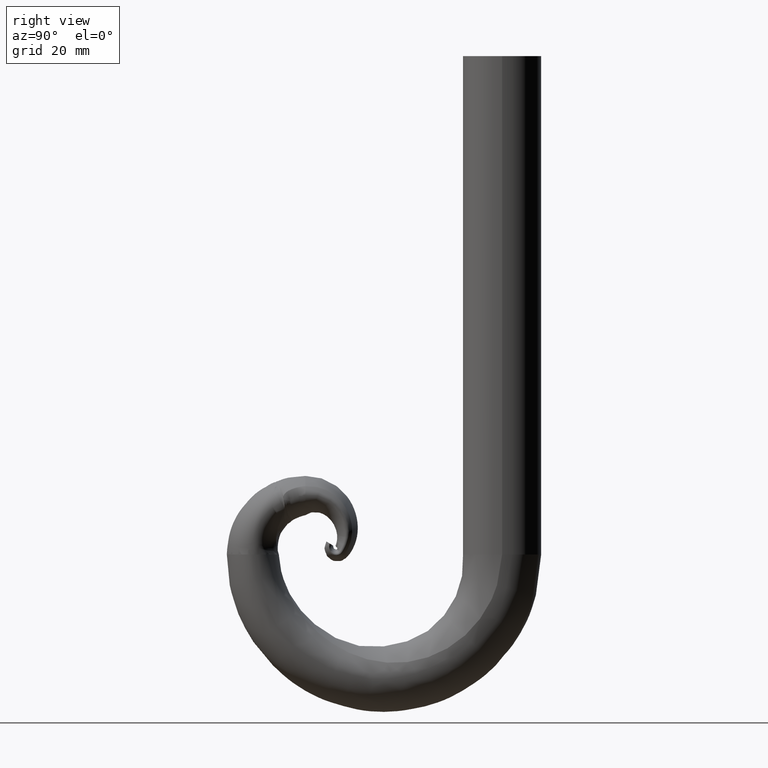
[diagram: clean part render]
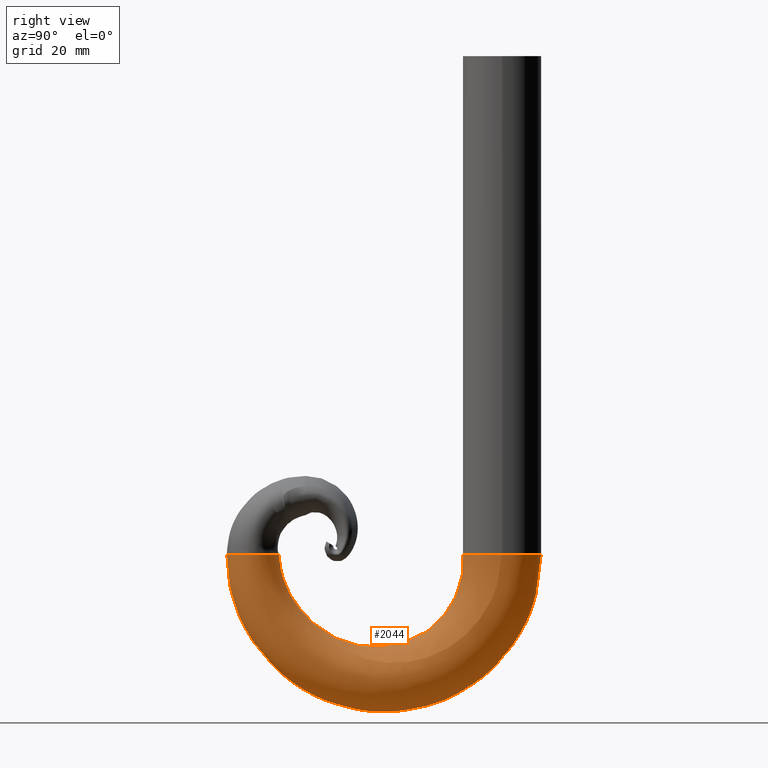
[diagram: same view with one face highlighted and labeled with its STEP entity id]
A machine part, right view. The second image highlights one B-rep face of the part: STEP entity #2044.
In plain terms, the highlighted face is a freeform B-spline surface patch.
Its self-contained STEP definition (entity closure, byte-faithful):
#25 = CARTESIAN_POINT ( 'NONE',  ( 13.65886937784926000, 22.75123339243464600, -24.79254982472513500 ) ) ;
#37 = CARTESIAN_POINT ( 'NONE',  ( 13.36867579086062300, 111.5294611910136500, -4.540036790082970300 ) ) ;
#73 = CARTESIAN_POINT ( 'NONE',  ( 10.96600749127136800, 17.86125531808370700, -8.337120620649692200 ) ) ;
#84 = CARTESIAN_POINT ( 'NONE',  ( 10.58119358983072400, 21.11521625171146300, -16.06602046360620100 ) ) ;
#114 = CARTESIAN_POINT ( 'NONE',  ( 14.31059420103306600, 37.29110021392713700, -38.92888312101727900 ) ) ;
#156 = CARTESIAN_POINT ( 'NONE',  ( 10.53618836772860900, 17.46906908887476500, -2.784063157197942800 ) ) ;
#167 = CARTESIAN_POINT ( 'NONE',  ( 15.03172340500698900, 59.73443276240129800, -47.13876090660996700 ) ) ;
#198 = CARTESIAN_POINT ( 'NONE',  ( 11.75979875955969000, 17.23765410008450200, -8.456311724701480500 ) ) ;
#209 = CARTESIAN_POINT ( 'NONE',  ( 13.44180638684116300, 111.6700213106032600, 0.0000000000000000000 ) ) ;
#242 = CARTESIAN_POINT ( 'NONE',  ( 14.35263051915613500, 95.84617851167539000, -36.10685157905737000 ) ) ;
#251 = CARTESIAN_POINT ( 'NONE',  ( 16.02063080316139200, 101.6991707927695500, 0.0000000000000000000 ) ) ;
#289 = CARTESIAN_POINT ( 'NONE',  ( 3.329724182468171400, 28.71957191434831800, -20.86998937878071600 ) ) ;
#334 = CARTESIAN_POINT ( 'NONE',  ( 14.56811554756758800, 108.6508297933929700, 0.0000000000000000000 ) ) ;
#384 = CARTESIAN_POINT ( 'NONE',  ( 15.02507487691591200, 71.87172978469335800, -45.22949707420258400 ) ) ;
#426 = CARTESIAN_POINT ( 'NONE',  ( 13.53233805482979700, 48.64033355194603600, -41.43941324657655700 ) ) ;
#465 = CARTESIAN_POINT ( 'NONE',  ( -15.02317522259562000, 30.43393890101662100, -31.00682966068207900 ) ) ;
#514 = CARTESIAN_POINT ( 'NONE',  ( -13.17319415493920300, 109.1773751614643300, -28.44987507943329800 ) ) ;
#555 = CARTESIAN_POINT ( 'NONE',  ( -8.948307317937388200, 60.02413107051511100, -35.67924677939678400 ) ) ;
#760 = CARTESIAN_POINT ( 'NONE',  ( -16.69173651622178800, 13.54120400265043900, -9.283998937244472700 ) ) ;
#804 = CARTESIAN_POINT ( 'NONE',  ( -16.53243676433012900, 48.62639190731268700, -43.04940839834025500 ) ) ;
#846 = CARTESIAN_POINT ( 'NONE',  ( 13.08895571177299500, 59.74971604120482000, -56.39657832214689400 ) ) ;
#894 = CARTESIAN_POINT ( 'NONE',  ( 16.07953326275658400, 12.29554982053414700, -3.130234800610209000 ) ) ;
#943 = CARTESIAN_POINT ( 'NONE',  ( 7.955483097077817000, 111.8607789429253900, -30.13103080806279300 ) ) ;
#975 = CARTESIAN_POINT ( 'NONE',  ( 15.00000000000000000, 105.0000000000000000, 0.0000000000000000000 ) ) ;
#992 = CARTESIAN_POINT ( 'NONE',  ( 12.46800299422817400, 16.58128002790937200, -8.582232053386869500 ) ) ;
#1036 = CARTESIAN_POINT ( 'NONE',  ( 12.41848821633131900, 112.5561707187451400, -14.14670106275117300 ) ) ;
#1043 = CARTESIAN_POINT ( 'NONE',  ( 13.61077113254024200, 110.5169689503188600, -13.62203090800151800 ) ) ;
#1073 = CARTESIAN_POINT ( 'NONE',  ( 14.40606876968519900, 85.35749614917175200, -44.33923479618634600 ) ) ;
#1114 = CARTESIAN_POINT ( 'NONE',  ( 14.96567091041886300, 72.42269961061721500, -47.29046816931322900 ) ) ;
#1139 = CARTESIAN_POINT ( 'NONE',  ( 15.00000000000000000, 10.00000000000000000, 0.0000000000000000000 ) ) ;
#1159 = CARTESIAN_POINT ( 'NONE',  ( 13.37459531095454500, 29.56336317270020300, -31.60556189032403300 ) ) ;
#1188 = VERTEX_POINT ( 'NONE', #7863 ) ;
#1197 = CARTESIAN_POINT ( 'NONE',  ( 13.85027397396524800, 37.75113446477081400, -38.14808545784130400 ) ) ;
#1208 = CARTESIAN_POINT ( 'NONE',  ( 13.89813281261430500, 110.4314292880276300, -4.446882771636524000 ) ) ;
#1247 = CARTESIAN_POINT ( 'NONE',  ( 10.06471797262829800, 25.73709163599889700, -22.82153711524168900 ) ) ;
#1295 = CARTESIAN_POINT ( 'NONE',  ( 12.70252136942210600, 94.62559131663455500, -3.114756689252203600 ) ) ;
#1339 = CARTESIAN_POINT ( 'NONE',  ( 14.89661200973689000, 94.27755446427259800, -34.54805513892981100 ) ) ;
#1379 = CARTESIAN_POINT ( 'NONE',  ( 14.47464938853325800, 108.3326327246659000, -13.05743736335147700 ) ) ;
#1429 = CARTESIAN_POINT ( 'NONE',  ( 8.068984424234843200, 22.45054665072792200, -15.52470636384562900 ) ) ;
#1479 = CARTESIAN_POINT ( 'NONE',  ( -16.99548070941379800, 101.9848532676185300, -24.28023947040913900 ) ) ;
#1525 = CARTESIAN_POINT ( 'NONE',  ( 3.240904874062261200, 50.76436130148197600, -34.04934551584024400 ) ) ;
#1543 = AXIS2_PLACEMENT_3D ( 'NONE', #11543, #6706, #7706 ) ;
#1563 = CARTESIAN_POINT ( 'NONE',  ( -17.10338262123924100, 105.6608731966419400, -12.16300325651428300 ) ) ;
#1774 = CARTESIAN_POINT ( 'NONE',  ( -17.12160022678280000, 105.4042587609114000, -4.053762807867186300 ) ) ;
#1819 = CARTESIAN_POINT ( 'NONE',  ( -16.58602445892478300, 11.24285004736606700, -20.24769498451306800 ) ) ;
#1859 = CARTESIAN_POINT ( 'NONE',  ( 7.033811235658875600, 118.5928542289492800, -15.68830275120423500 ) ) ;
#1908 = CARTESIAN_POINT ( 'NONE',  ( 11.18286558935782400, 115.0250718699649600, 0.0000000000000000000 ) ) ;
#1956 = CARTESIAN_POINT ( 'NONE',  ( 15.57987839622963500, 7.364760634913289500, -10.37531967528425800 ) ) ;
#1977 = CARTESIAN_POINT ( 'NONE',  ( -15.00000000000000000, 10.00000000000000200, 0.0000000000000000000 ) ) ;
#2000 = CARTESIAN_POINT ( 'NONE',  ( 11.93150763086006600, 16.08085061455985400, 0.0000000000000000000 ) ) ;
#2041 = CARTESIAN_POINT ( 'NONE',  ( 13.46234456845709100, 97.34661674375537600, -37.59449597473508900 ) ) ;
#2044 = ADVANCED_FACE ( 'NONE', ( #3870, #10672 ), #7093, .T. ) ;
#2088 = CARTESIAN_POINT ( 'NONE',  ( 14.81063291613967800, 72.70011961184782500, -48.32355822531205500 ) ) ;
#2128 = CARTESIAN_POINT ( 'NONE',  ( 14.65348935523129500, 36.82569988167249200, -39.72185921537911200 ) ) ;
#2137 = CARTESIAN_POINT ( 'NONE',  ( 13.85027397396524800, 37.75113446477081400, -38.14808545784130400 ) ) ;
#2168 = CARTESIAN_POINT ( 'NONE',  ( 14.60976029479772500, 84.99685382574684000, -43.72035949060668300 ) ) ;
#2177 = CARTESIAN_POINT ( 'NONE',  ( 9.765521296487374800, 18.63065612542083500, -8.190870352970122800 ) ) ;
#2206 = CARTESIAN_POINT ( 'NONE',  ( 13.05350104826152900, 112.4011792039012600, 0.0000000000000000000 ) ) ;
#2219 = CARTESIAN_POINT ( 'NONE',  ( 14.40237196033587400, 103.5547420688383900, -25.38507203133297500 ) ) ;
#2251 = CARTESIAN_POINT ( 'NONE',  ( 14.23081762309030100, 96.10683517424077100, -36.36558699354291900 ) ) ;
#2264 = CARTESIAN_POINT ( 'NONE',  ( -0.2609481619960991600, 20.90337339936101200, 0.0000000000000000000 ) ) ;
#2309 = CARTESIAN_POINT ( 'NONE',  ( 11.62949255988013600, 90.43743188686781300, -17.80747700441826700 ) ) ;
#2349 = CARTESIAN_POINT ( 'NONE',  ( 12.19578283859876700, 59.77433762001421500, -38.76076157967479900 ) ) ;
#2400 = CARTESIAN_POINT ( 'NONE',  ( 10.46601283454992900, 31.63068636409766700, -29.48440301943750800 ) ) ;
#2444 = CARTESIAN_POINT ( 'NONE',  ( 14.90437009447098800, 101.6048980144619200, -24.26451279984258100 ) ) ;
#2482 = CARTESIAN_POINT ( 'NONE',  ( -14.17819593577642000, 114.3032900651337400, -4.801513492115090800 ) ) ;
#2526 = CARTESIAN_POINT ( 'NONE',  ( -0.2759786757278812600, 87.86929289665229700, 0.0000000000000000000 ) ) ;
#2572 = CARTESIAN_POINT ( 'NONE',  ( 0.1427846896098936600, 42.04199549219753600, -31.10079997570176500 ) ) ;
#2787 = CARTESIAN_POINT ( 'NONE',  ( -5.148251374936091200, 3.329947838935730000, -23.46895972212463400 ) ) ;
#2831 = CARTESIAN_POINT ( 'NONE',  ( -16.41983305409973300, 85.87791324307794100, -44.75669429804985800 ) ) ;
#2879 = CARTESIAN_POINT ( 'NONE',  ( 15.75808213511765200, 7.250639095366931700, -3.464690816702954200 ) ) ;
#2921 = CARTESIAN_POINT ( 'NONE',  ( 10.17367349406500100, 89.22860608617391200, -50.95032962567322000 ) ) ;
#2963 = CARTESIAN_POINT ( 'NONE',  ( 11.54504288688203900, 74.74061122662377000, -55.84348118184490800 ) ) ;
#2988 = CARTESIAN_POINT ( 'NONE',  ( -15.00000000000000700, -9.999999999999994700, 0.0000000000000000000 ) ) ;
#3012 = CARTESIAN_POINT ( 'NONE',  ( 12.10268816681459600, 113.5874286893559500, -4.714902184333601200 ) ) ;
#3037 = CARTESIAN_POINT ( 'NONE',  ( 15.00000000000000200, 30.00000000000000400, 0.0000000000000000000 ) ) ;
#3056 = CARTESIAN_POINT ( 'NONE',  ( 14.54517086623603300, 72.96909245953818900, -49.32092751419465800 ) ) ;
#3065 = CARTESIAN_POINT ( 'NONE',  ( 14.78214817663601200, 84.62984046003330700, -43.09000757821136300 ) ) ;
#3092 = CARTESIAN_POINT ( 'NONE',  ( 13.83443137359996400, 104.8377868492025900, -26.12091325796933800 ) ) ;
#3129 = CARTESIAN_POINT ( 'NONE',  ( 15.04944791063838800, 59.73394416122971500, -47.48873361912127700 ) ) ;
#3171 = CARTESIAN_POINT ( 'NONE',  ( 12.96640201886075200, 29.94086409269774400, -31.21689805252959400 ) ) ;
#3182 = CARTESIAN_POINT ( 'NONE',  ( 9.292662419570200800, 18.19517560161083500, -2.735224955077113900 ) ) ;
#3213 = CARTESIAN_POINT ( 'NONE',  ( 13.95732746680796400, 96.61691347587752400, -36.87158351457969700 ) ) ;
#3251 = CARTESIAN_POINT ( 'NONE',  ( 15.06857082344280100, 59.73288091765882500, -48.53332761438430500 ) ) ;
#3261 = CARTESIAN_POINT ( 'NONE',  ( 7.111514465200612800, 19.87666397507723600, -7.956619278688311400 ) ) ;
#3304 = CARTESIAN_POINT ( 'NONE',  ( 10.75133614133581800, 84.82242876168685100, -25.08406731732537400 ) ) ;
#3351 = CARTESIAN_POINT ( 'NONE',  ( 7.482266405268371800, 41.24183890570883900, -32.29535317257052200 ) ) ;
#3393 = CARTESIAN_POINT ( 'NONE',  ( 10.10603245325745200, 50.00580344026105500, -36.52327863975961000 ) ) ;
#3432 = CARTESIAN_POINT ( 'NONE',  ( 0.06703834509963253800, 21.26715558571983100, -2.526449376463740600 ) ) ;
#3478 = CARTESIAN_POINT ( 'NONE',  ( -5.563707877214132400, 24.27974417582924000, -14.82321233561509300 ) ) ;
#3504 = VERTEX_POINT ( 'NONE', #975 ) ;
#3519 = CARTESIAN_POINT ( 'NONE',  ( -9.736760735355039400, 75.50562300308774900, -57.92001344963555500 ) ) ;
#3554 = CARTESIAN_POINT ( 'NONE',  ( -4.987467944102919000, 76.14172072940385800, -28.14145828932868600 ) ) ;
#3762 = CARTESIAN_POINT ( 'NONE',  ( -2.360745645402453800, 34.54867377425345200, -26.58495410301150800 ) ) ;
#3807 = CARTESIAN_POINT ( 'NONE',  ( -0.5785497277666746800, 87.97398017270086300, -2.566904941571138500 ) ) ;
#3849 = CARTESIAN_POINT ( 'NONE',  ( 15.84742579258535000, 7.193423484726333900, 0.0000000000000000000 ) ) ;
#3870 = FACE_OUTER_BOUND ( 'NONE', #12253, .T. ) ;
#3896 = CARTESIAN_POINT ( 'NONE',  ( 16.33364729884444300, 14.84295658622133400, -18.63240973849189100 ) ) ;
#3941 = CARTESIAN_POINT ( 'NONE',  ( 12.88745943470347700, 98.03919671296061700, -38.27966671589382500 ) ) ;
#3982 = CARTESIAN_POINT ( 'NONE',  ( 6.210637816380871500, -0.4250689724260337500, -3.968638147301916300 ) ) ;
#4018 = CARTESIAN_POINT ( 'NONE',  ( 6.530244006936962700, -0.5597391234612864000, 0.0000000000000000000 ) ) ;
#4027 = CARTESIAN_POINT ( 'NONE',  ( 14.96567091041886300, 72.42269961061721500, -47.29046816931322900 ) ) ;
#4062 = CARTESIAN_POINT ( 'NONE',  ( 10.37993769632153600, 18.25265887406525400, -8.262631311037619500 ) ) ;
#4074 = CARTESIAN_POINT ( 'NONE',  ( 14.35263051915613500, 95.84617851167539000, -36.10685157905737000 ) ) ;
#4103 = CARTESIAN_POINT ( 'NONE',  ( 11.69524451139238500, 20.31237799346770200, -16.39303032349296500 ) ) ;
#4149 = CARTESIAN_POINT ( 'NONE',  ( 11.16733696925948900, 16.69437642397010200, 0.0000000000000000000 ) ) ;
#4185 = CARTESIAN_POINT ( 'NONE',  ( 14.69595423571686900, 84.81334714289006600, -43.40518353440901900 ) ) ;
#4195 = CARTESIAN_POINT ( 'NONE',  ( 14.91998933666971900, 84.26336055804391400, -42.46003766954674300 ) ) ;
#4227 = CARTESIAN_POINT ( 'NONE',  ( 11.98975252373214000, 24.44108627308053600, -23.67505062830418800 ) ) ;
#4239 = CARTESIAN_POINT ( 'NONE',  ( 6.298828313048340500, 19.08926865827918800, 0.0000000000000000000 ) ) ;
#4282 = CARTESIAN_POINT ( 'NONE',  ( 13.59894102852481600, 70.04410711660622700, -38.33293492603125700 ) ) ;
#4322 = CARTESIAN_POINT ( 'NONE',  ( 6.570213324435616000, 19.35220815398685800, -2.657000132009697000 ) ) ;
#4365 = CARTESIAN_POINT ( 'NONE',  ( 15.01139161047345600, 93.49438175221737900, -33.76835067641597700 ) ) ;
#4413 = CARTESIAN_POINT ( 'NONE',  ( 9.990337308611769300, 21.49187017878975000, -15.91287064442876300 ) ) ;
#4456 = CARTESIAN_POINT ( 'NONE',  ( -3.928565498062867300, -0.4799744632086270800, -11.98249798818637600 ) ) ;
#4495 = CARTESIAN_POINT ( 'NONE',  ( -7.663725067936952400, 59.98871973632049800, -61.04349353616174800 ) ) ;
#4536 = CARTESIAN_POINT ( 'NONE',  ( -16.91002006429105700, 17.18767714890725500, -28.66937132136452200 ) ) ;
#4643 =( BOUNDED_CURVE ( )  B_SPLINE_CURVE ( 3, ( #1139, #3037, #10007, #1977, #2988, #8066, #10960 ),
 .UNSPECIFIED., .T., .F. ) 
 B_SPLINE_CURVE_WITH_KNOTS ( ( 4, 3, 4 ),
 ( 0.0000000000000000000, 3.141592653589793100, 6.283185307179586200 ),
 .UNSPECIFIED. ) 
 CURVE ( )  GEOMETRIC_REPRESENTATION_ITEM ( )  RATIONAL_B_SPLINE_CURVE ( ( 1.000000000000000000, 0.3333333333333333700, 0.3333333333333333700, 1.000000000000000000, 0.3333333333333333700, 0.3333333333333333700, 1.000000000000000000 ) ) 
 REPRESENTATION_ITEM ( '' )  );
#4741 = CARTESIAN_POINT ( 'NONE',  ( -11.91637259783948500, 84.98110642226531300, -25.03433299650544400 ) ) ;
#4783 = CARTESIAN_POINT ( 'NONE',  ( -16.88266821321294500, 11.94511400325282000, 0.0000000000000000000 ) ) ;
#4827 = CARTESIAN_POINT ( 'NONE',  ( 16.20206454361945000, 12.46873664890903800, -9.373761883300257800 ) ) ;
#4873 = CARTESIAN_POINT ( 'NONE',  ( 6.236894033836923000, 120.1214165208554000, 0.0000000000000000000 ) ) ;
#4918 = CARTESIAN_POINT ( 'NONE',  ( 14.30975631636284400, 28.39004620168039800, -32.81718971868034600 ) ) ;
#4963 = CARTESIAN_POINT ( 'NONE',  ( 8.987807790913219500, 101.9616820515854100, -42.15428446328530800 ) ) ;
#5009 = CARTESIAN_POINT ( 'NONE',  ( 12.93006726680532000, 106.3466752584795100, -26.98477186080131300 ) ) ;
#5020 = CARTESIAN_POINT ( 'NONE',  ( 13.24765371755134600, 112.0356002572522600, 0.0000000000000000000 ) ) ;
#5049 = CARTESIAN_POINT ( 'NONE',  ( 10.07272949640445400, 18.44165749974304400, -8.226750832003869400 ) ) ;
#5059 = CARTESIAN_POINT ( 'NONE',  ( 13.68545684771321700, 37.90377752314326900, -37.88931259500287000 ) ) ;
#5086 = CARTESIAN_POINT ( 'NONE',  ( 13.89000284719928800, 28.98257094615671300, -32.20474895157415300 ) ) ;
#5096 = CARTESIAN_POINT ( 'NONE',  ( 9.378639845035573700, 17.80430407338330000, 0.0000000000000000000 ) ) ;
#5130 = CARTESIAN_POINT ( 'NONE',  ( 13.24765371755134600, 112.0356002572522600, 0.0000000000000000000 ) ) ;
#5142 = CARTESIAN_POINT ( 'NONE',  ( 9.055591403027756700, 17.97684447682123500, 0.0000000000000000000 ) ) ;
#5175 = CARTESIAN_POINT ( 'NONE',  ( 9.378639845035573700, 17.80430407338330000, 0.0000000000000000000 ) ) ;
#5187 = CARTESIAN_POINT ( 'NONE',  ( 13.98495753244824000, 104.5180221899987600, -25.93758170704850800 ) ) ;
#5228 = CARTESIAN_POINT ( 'NONE',  ( 12.06019915092039300, 30.67152374732960100, -30.46589113434749100 ) ) ;
#5273 = CARTESIAN_POINT ( 'NONE',  ( 14.62901450033373500, 108.1742133073645000, -4.255743497398753100 ) ) ;
#5322 = CARTESIAN_POINT ( 'NONE',  ( 13.32789274813556100, 38.20121531330070800, -37.38598236753052400 ) ) ;
#5360 = CARTESIAN_POINT ( 'NONE',  ( 14.70241465915626800, 102.5816548511152900, -24.82616236264956200 ) ) ;
#5403 = CARTESIAN_POINT ( 'NONE',  ( 14.42981718085105000, 48.15483245957613400, -43.20399704777479900 ) ) ;
#5447 = CARTESIAN_POINT ( 'NONE',  ( -8.336984873388459500, 18.12579137526725100, -43.75071597929436300 ) ) ;
#5490 = CARTESIAN_POINT ( 'NONE',  ( -6.685013436292417000, 21.06242221538939300, -7.774884580123854900 ) ) ;
#5532 = CARTESIAN_POINT ( 'NONE',  ( -10.55393144892464000, 30.25563293480286500, -51.66775119255456900 ) ) ;
#5736 = CARTESIAN_POINT ( 'NONE',  ( -16.35963363347918400, 17.50890863172814700, -17.66038539058561700 ) ) ;
#5782 = CARTESIAN_POINT ( 'NONE',  ( 2.909706389378850400, 8.600310217918995200, -34.28605998203558200 ) ) ;
#5827 = CARTESIAN_POINT ( 'NONE',  ( 12.27979287482967900, 107.1803212273713200, -27.46108551431221300 ) ) ;
#5877 = CARTESIAN_POINT ( 'NONE',  ( 11.35721109522437200, 114.5085196887691400, -4.793345707995244200 ) ) ;
#5924 = CARTESIAN_POINT ( 'NONE',  ( 13.05471562692917500, 19.00130848568103300, -16.92885732894313100 ) ) ;
#5971 = CARTESIAN_POINT ( 'NONE',  ( 14.64417924667677600, 45.62667419884987700, -52.62381990121645700 ) ) ;
#6012 = CARTESIAN_POINT ( 'NONE',  ( 12.41943920067036100, 19.67055472760379300, -16.65510958170435500 ) ) ;
#6022 = CARTESIAN_POINT ( 'NONE',  ( 14.64124119956263200, 47.98379443342855000, -43.83107362905907000 ) ) ;
#6098 = CARTESIAN_POINT ( 'NONE',  ( 13.98495753244824000, 104.5180221899987600, -25.93758170704850800 ) ) ;
#6113 = CARTESIAN_POINT ( 'NONE',  ( 14.13548369129651600, 104.1982575307949000, -25.75425015612767500 ) ) ;
#6144 = CARTESIAN_POINT ( 'NONE',  ( 13.43614055810529200, 110.8756756879157300, -13.71454250101715600 ) ) ;
#6192 = CARTESIAN_POINT ( 'NONE',  ( 14.90057638219345500, 71.60485689952645300, -44.22554965915608700 ) ) ;
#6233 = CARTESIAN_POINT ( 'NONE',  ( 14.47214496728558000, 59.74313624567864200, -44.45346435468462000 ) ) ;
#6278 = CARTESIAN_POINT ( 'NONE',  ( 15.83379105770851100, 100.5169126986680500, -11.02646071994782600 ) ) ;
#6322 = CARTESIAN_POINT ( 'NONE',  ( 14.23084264527946600, 109.7984948607193900, 0.0000000000000000000 ) ) ;
#6366 = CARTESIAN_POINT ( 'NONE',  ( 7.623778245841381600, 18.97205876547714700, -2.682787722756622800 ) ) ;
#6412 = CARTESIAN_POINT ( 'NONE',  ( -17.13070710334769200, 105.2759786757278800, 0.0000000000000000000 ) ) ;
#6456 = CARTESIAN_POINT ( 'NONE',  ( -6.551562084167018800, 9.260699239873687800, -33.89762102199534200 ) ) ;
#6495 = CARTESIAN_POINT ( 'NONE',  ( -9.364600331754999700, 90.65282080976759000, 0.0000000000000000000 ) ) ;
#6534 = CARTESIAN_POINT ( 'NONE',  ( -13.61672868639172800, 39.83523158240967600, -35.24556449011642900 ) ) ;
#6706 = DIRECTION ( 'NONE',  ( 0.0000000000000000000, 0.0000000000000000000, 1.000000000000000000 ) ) ;
#6748 = CARTESIAN_POINT ( 'NONE',  ( -12.97207541733402200, 78.53764592880658300, -32.14965605014293700 ) ) ;
#6787 = CARTESIAN_POINT ( 'NONE',  ( 13.61623860290750400, 21.07856135016389100, -40.43808474212094200 ) ) ;
#6834 = CARTESIAN_POINT ( 'NONE',  ( 5.130840400898361700, 75.69407331505286200, -59.17628999322084100 ) ) ;
#6880 = CARTESIAN_POINT ( 'NONE',  ( 13.53166466008018000, 86.37656151085741400, -46.08333299077602900 ) ) ;
#6925 = CARTESIAN_POINT ( 'NONE',  ( 11.70597585903074700, 113.4751968131779700, -14.38206481711227400 ) ) ;
#6963 = EDGE_CURVE ( 'NONE', #1188, #1188, #4643, .T. ) ;
#6968 = CARTESIAN_POINT ( 'NONE',  ( 14.89805897044344400, 36.35798768950109400, -40.52127587347008100 ) ) ;
#7007 = CARTESIAN_POINT ( 'NONE',  ( 15.06717241626978600, 59.73345556005813300, -47.83870633163257200 ) ) ;
#7051 = CARTESIAN_POINT ( 'NONE',  ( 9.928180055326743400, 17.83910281506815600, -2.759188508991171000 ) ) ;
#7063 = ORIENTED_EDGE ( 'NONE', *, *, #6963, .F. ) ;
#7087 = CARTESIAN_POINT ( 'NONE',  ( 9.701688287043388900, 17.63176366994536400, 0.0000000000000000000 ) ) ;
#7093 = B_SPLINE_SURFACE_WITH_KNOTS ( 'NONE', 3, 3, ( 
 ( #5020, #37, #1043, #5187, #4074, #9035, #4027, #11947, #10076, #2137, #10036, #8952, #11031, #11073, #9996, #5096 ),
 ( #209, #12070, #7978, #6113, #10988, #3065, #8993, #167, #6022, #5059, #7100, #8100, #84, #2177, #3182, #5142 ),
 ( #7136, #1208, #8140, #2219, #10117, #4195, #11114, #12113, #5403, #5322, #5228, #9158, #4413, #12244, #10291, #10156 ),
 ( #6322, #10337, #1379, #5360, #1339, #10244, #384, #7268, #12204, #7308, #7181, #1247, #12292, #8306, #6366, #11331 ),
 ( #334, #5273, #9203, #2444, #4365, #11287, #6192, #6233, #426, #7358, #2400, #11246, #1429, #3261, #4322, #4239 ),
 ( #251, #9286, #6278, #8179, #8262, #8347, #4282, #2349, #3393, #3351, #12160, #289, #9336, #11155, #3432, #2264 ),
 ( #7222, #1295, #8219, #2309, #3304, #10196, #11204, #9245, #1525, #2572, #3762, #12334, #3478, #5490, #10674, #10716 ),
 ( #2526, #3807, #7705, #11679, #7492, #3554, #11450, #555, #12412, #6534, #465, #7409, #5736, #760, #12674, #4783 ),
 ( #6495, #11414, #9423, #8727, #4741, #6748, #11719, #12375, #804, #7743, #12457, #4536, #1819, #9379, #10462, #10379 ),
 ( #6412, #1774, #1563, #1479, #8470, #2831, #10421, #9464, #8684, #5532, #5447, #6456, #2787, #4456, #9678, #8390 ),
 ( #9717, #2482, #11377, #514, #7448, #8432, #3519, #4495, #7836, #8861, #9902, #5782, #9762, #11807, #3982, #4018 ),
 ( #7788, #7967, #12853, #10809, #10900, #11762, #6834, #12809, #10767, #12711, #6787, #10943, #9813, #1956, #2879, #3849 ),
 ( #4873, #7876, #1859, #943, #4963, #2921, #2963, #846, #5971, #11899, #8774, #11856, #3896, #4827, #894, #9860 ),
 ( #1908, #5877, #6925, #5827, #3941, #6880, #12761, #8815, #10853, #6968, #4918, #25, #5924, #992, #7917, #2000 ),
 ( #8907, #3012, #1036, #5009, #2041, #8943, #3056, #9948, #11062, #2128, #5086, #11143, #6012, #198, #9063, #4149 ),
 ( #11937, #9102, #9143, #10027, #3213, #1073, #2088, #3251, #12059, #114, #1159, #8981, #4103, #73, #156, #8086 ),
 ( #2206, #10975, #6144, #3092, #2251, #2168, #9022, #7007, #10147, #11019, #3171, #4227, #8006, #4062, #7051, #7087 ),
 ( #5130, #10105, #12023, #6098, #242, #4185, #1114, #3129, #7126, #1197, #10063, #9987, #8130, #5049, #11103, #5175 ) ),
 .UNSPECIFIED., .T., .F., .F.,
 ( 4, 1, 1, 1, 1, 2, 2, 2, 1, 1, 1, 1, 4 ),
 ( 4, 1, 1, 1, 1, 1, 1, 1, 1, 1, 1, 1, 1, 4 ),
 ( 0.0000000000000000000, 0.01249999999999995600, 0.02499999999999991100, 0.03750000000000008900, 0.05000000000000004400, 0.2499999999999999700, 0.4999999999999999400, 0.7499999999999998900, 0.9499999999999999600, 0.9625000000000000200, 0.9749999999999999800, 0.9875000000000000400, 1.000000000000000000 ),
 ( 0.0000000000000000000, 0.07964503688647843500, 0.1593237654162673900, 0.2398402972263984100, 0.3211999485002248700, 0.4033175517603381200, 0.4864761443159515400, 0.5706131245756263000, 0.6554089070950215300, 0.7407672416523380900, 0.8051265196662216200, 0.8697558212815755800, 0.9347011944688080600, 1.000000000000000000 ),
 .UNSPECIFIED. ) ;
#7100 = CARTESIAN_POINT ( 'NONE',  ( 12.52550514786339500, 30.31258195430806900, -30.83461051582209600 ) ) ;
#7126 = CARTESIAN_POINT ( 'NONE',  ( 14.73129813121822600, 47.89689311428728800, -44.15057967635213700 ) ) ;
#7136 = CARTESIAN_POINT ( 'NONE',  ( 13.79677881892623900, 110.9299782036900300, 0.0000000000000000000 ) ) ;
#7181 = CARTESIAN_POINT ( 'NONE',  ( 11.29436622966128400, 31.17093869484613900, -29.95415568593869800 ) ) ;
#7222 = CARTESIAN_POINT ( 'NONE',  ( 12.88486340363637200, 94.85878899108573100, 0.0000000000000000000 ) ) ;
#7268 = CARTESIAN_POINT ( 'NONE',  ( 14.76354192423617400, 59.73893883306433800, -45.43516697623189100 ) ) ;
#7308 = CARTESIAN_POINT ( 'NONE',  ( 12.71287513799082800, 38.62297238591270300, -36.67497744963118600 ) ) ;
#7358 = CARTESIAN_POINT ( 'NONE',  ( 12.02430414751036000, 39.01947521303876000, -36.00930688373657800 ) ) ;
#7409 = CARTESIAN_POINT ( 'NONE',  ( -15.85850573365672700, 22.96298883058811000, -24.81313461013946400 ) ) ;
#7448 = CARTESIAN_POINT ( 'NONE',  ( -12.33562258441636300, 100.9060504355701500, -40.90631654531863100 ) ) ;
#7492 = CARTESIAN_POINT ( 'NONE',  ( -3.507241846388943400, 82.01497786976249000, -22.15448629365728600 ) ) ;
#7705 = CARTESIAN_POINT ( 'NONE',  ( -1.183819826209759900, 88.18339900987214700, -7.701800683281434500 ) ) ;
#7706 = DIRECTION ( 'NONE',  ( 1.000000000000000000, 0.0000000000000000000, 0.0000000000000000000 ) ) ;
#7743 = CARTESIAN_POINT ( 'NONE',  ( -17.14661649900586600, 36.36135526970131300, -41.31683667901711500 ) ) ;
#7788 = CARTESIAN_POINT ( 'NONE',  ( -1.186337110868141100, 121.3540964261884200, 0.0000000000000000000 ) ) ;
#7836 = CARTESIAN_POINT ( 'NONE',  ( -4.866989784916552400, 43.96523518581973600, -59.83266857555483400 ) ) ;
#7863 = CARTESIAN_POINT ( 'NONE',  ( 15.00000000000000000, 10.00000000000000000, 0.0000000000000000000 ) ) ;
#7876 = CARTESIAN_POINT ( 'NONE',  ( 6.502495649290343800, 119.6119675930078600, -5.228696964898941400 ) ) ;
#7917 = CARTESIAN_POINT ( 'NONE',  ( 12.11066264649714300, 16.24796191783568800, -2.865914642901696800 ) ) ;
#7941 = CIRCLE ( 'NONE', #1543, 15.00000000000000000 ) ;
#7967 = CARTESIAN_POINT ( 'NONE',  ( -0.8971248385876252600, 120.9549012090674300, -5.349365239796156900 ) ) ;
#7978 = CARTESIAN_POINT ( 'NONE',  ( 13.78540170697519200, 110.1582622127219800, -13.52951931498588100 ) ) ;
#8006 = CARTESIAN_POINT ( 'NONE',  ( 11.15308224403015700, 20.71957114128994700, -16.22708370048677700 ) ) ;
#8066 = CARTESIAN_POINT ( 'NONE',  ( 15.00000000000000200, -9.999999999999996400, 0.0000000000000000000 ) ) ;
#8086 = CARTESIAN_POINT ( 'NONE',  ( 10.32069562449834900, 17.27244385337390400, 0.0000000000000000000 ) ) ;
#8100 = CARTESIAN_POINT ( 'NONE',  ( 11.47182962472594000, 24.83743516853221000, -23.41363814327264200 ) ) ;
#8130 = CARTESIAN_POINT ( 'NONE',  ( 10.86713791693044100, 20.91739369650070300, -16.14655208204649000 ) ) ;
#8140 = CARTESIAN_POINT ( 'NONE',  ( 14.10088367501111900, 109.4341205592898700, -13.34252944641559900 ) ) ;
#8179 = CARTESIAN_POINT ( 'NONE',  ( 15.54079377272306300, 95.74720571611001700, -20.89259158246572700 ) ) ;
#8219 = CARTESIAN_POINT ( 'NONE',  ( 12.33776016620881500, 94.15909731986695900, -9.345587679945341000 ) ) ;
#8262 = CARTESIAN_POINT ( 'NONE',  ( 15.12620040007264800, 88.82667760874822700, -29.11609550874672800 ) ) ;
#8306 = CARTESIAN_POINT ( 'NONE',  ( 8.142622474734208600, 19.46298970913026200, -8.033842474583570600 ) ) ;
#8347 = CARTESIAN_POINT ( 'NONE',  ( 14.51715654865430100, 79.98134161615691100, -35.06799021340791700 ) ) ;
#8390 = CARTESIAN_POINT ( 'NONE',  ( -2.917671004879224000, -1.255112142141958900, 0.0000000000000000000 ) ) ;
#8432 = CARTESIAN_POINT ( 'NONE',  ( -11.23436751156730700, 89.44135415538035300, -50.98381267585550300 ) ) ;
#8470 = CARTESIAN_POINT ( 'NONE',  ( -16.78888844047280000, 95.40737292488105900, -35.38374957592739600 ) ) ;
#8684 = CARTESIAN_POINT ( 'NONE',  ( -12.93015949810632000, 45.15033914166257000, -55.82965029006286500 ) ) ;
#8727 = CARTESIAN_POINT ( 'NONE',  ( -10.97443435548269100, 89.19426689946489300, -16.94697743357588800 ) ) ;
#8774 = CARTESIAN_POINT ( 'NONE',  ( 16.26172273774563600, 24.78135259891195500, -36.55373096423997500 ) ) ;
#8815 = CARTESIAN_POINT ( 'NONE',  ( 14.78118981414483100, 59.73461698554311300, -50.55559580998244900 ) ) ;
#8861 = CARTESIAN_POINT ( 'NONE',  ( -1.671619509165654000, 28.77243708484893900, -54.00010880841591600 ) ) ;
#8907 = CARTESIAN_POINT ( 'NONE',  ( 11.94482153262605600, 114.1029486363907200, 0.0000000000000000000 ) ) ;
#8943 = CARTESIAN_POINT ( 'NONE',  ( 14.01122136599386500, 85.87796595044531500, -45.23080836890673600 ) ) ;
#8952 = CARTESIAN_POINT ( 'NONE',  ( 11.73079107422904100, 24.63926072080637300, -23.54434438578841700 ) ) ;
#8981 = CARTESIAN_POINT ( 'NONE',  ( 12.47652170613486300, 24.03567826399302700, -23.94267367264027200 ) ) ;
#8993 = CARTESIAN_POINT ( 'NONE',  ( 15.00642934618336900, 72.32950016844198200, -46.94298137807530200 ) ) ;
#9022 = CARTESIAN_POINT ( 'NONE',  ( 14.92491247465435900, 72.51589905279244900, -47.63795496055116300 ) ) ;
#9035 = CARTESIAN_POINT ( 'NONE',  ( 14.69595423571686900, 84.81334714289006600, -43.40518353440901900 ) ) ;
#9063 = CARTESIAN_POINT ( 'NONE',  ( 11.36518117920613200, 16.87579629673192000, -2.823865335498497500 ) ) ;
#9102 = CARTESIAN_POINT ( 'NONE',  ( 12.77931573951605100, 112.5974916237668600, -4.630719774437920900 ) ) ;
#9143 = CARTESIAN_POINT ( 'NONE',  ( 13.05967076759073100, 111.5728645127642300, -13.89411822200991000 ) ) ;
#9158 = CARTESIAN_POINT ( 'NONE',  ( 10.93249652830231800, 25.21726856432107400, -23.16335408769247200 ) ) ;
#9203 = CARTESIAN_POINT ( 'NONE',  ( 14.75083816749380900, 107.2207787158059900, -12.76903076748698500 ) ) ;
#9245 = CARTESIAN_POINT ( 'NONE',  ( 6.002521829349516800, 59.84970420065167200, -35.12063489571519900 ) ) ;
#9286 = CARTESIAN_POINT ( 'NONE',  ( 15.95835966870760100, 101.3051403226550300, -3.674968708488435300 ) ) ;
#9336 = CARTESIAN_POINT ( 'NONE',  ( 1.924347456310800300, 24.81162616102961800, -14.57426230580662500 ) ) ;
#9379 = CARTESIAN_POINT ( 'NONE',  ( -16.21689349474603900, 7.079970563903103200, -10.54727882683654800 ) ) ;
#9423 = CARTESIAN_POINT ( 'NONE',  ( -10.11815964384124200, 91.31260369276775200, -8.462539535888693000 ) ) ;
#9464 = CARTESIAN_POINT ( 'NONE',  ( -14.69495779801037100, 60.07532698899257900, -55.61278107590590700 ) ) ;
#9678 = CARTESIAN_POINT ( 'NONE',  ( -3.255244879883031600, -0.9962659107069570300, -4.001385214156646200 ) ) ;
#9717 = CARTESIAN_POINT ( 'NONE',  ( -14.34717919023240800, 114.3646003317550000, 0.0000000000000000000 ) ) ;
#9762 = CARTESIAN_POINT ( 'NONE',  ( 4.364160570962471100, 3.171733403366680200, -23.49690855030251800 ) ) ;
#9813 = CARTESIAN_POINT ( 'NONE',  ( 15.16008632722752100, 9.942568947467794500, -20.65973549533200400 ) ) ;
#9860 = CARTESIAN_POINT ( 'NONE',  ( 16.01810137106451700, 12.20872142530072300, 0.0000000000000000000 ) ) ;
#9902 = CARTESIAN_POINT ( 'NONE',  ( 0.9538090257143360100, 16.96382647692704600, -44.85996029979148900 ) ) ;
#9948 = CARTESIAN_POINT ( 'NONE',  ( 14.97223642343073100, 59.73318587278829000, -49.55586751864451100 ) ) ;
#9987 = CARTESIAN_POINT ( 'NONE',  ( 11.73079107422904100, 24.63926072080637300, -23.54434438578841700 ) ) ;
#9996 = CARTESIAN_POINT ( 'NONE',  ( 9.610421237448472100, 18.01713920833949300, -2.747206732034142500 ) ) ;
#10007 = CARTESIAN_POINT ( 'NONE',  ( -14.99999999999999600, 30.00000000000000400, 0.0000000000000000000 ) ) ;
#10027 = CARTESIAN_POINT ( 'NONE',  ( 13.50487860898908300, 105.4612987618872900, -26.47816342024824000 ) ) ;
#10036 = CARTESIAN_POINT ( 'NONE',  ( 12.74595358336207300, 30.12672302350290500, -31.02575428417584600 ) ) ;
#10063 = CARTESIAN_POINT ( 'NONE',  ( 12.74595358336207300, 30.12672302350290500, -31.02575428417584600 ) ) ;
#10076 = CARTESIAN_POINT ( 'NONE',  ( 14.73129813121822600, 47.89689311428728800, -44.15057967635213700 ) ) ;
#10105 = CARTESIAN_POINT ( 'NONE',  ( 13.36867579086062300, 111.5294611910136500, -4.540036790082970300 ) ) ;
#10117 = CARTESIAN_POINT ( 'NONE',  ( 14.68362158846676200, 95.06278080268232600, -35.32890604220232700 ) ) ;
#10147 = CARTESIAN_POINT ( 'NONE',  ( 14.82135506287382000, 47.80999179514603300, -44.47008572364520500 ) ) ;
#10156 = CARTESIAN_POINT ( 'NONE',  ( 8.394559788153824100, 18.30119437825990000, 0.0000000000000000000 ) ) ;
#10196 = CARTESIAN_POINT ( 'NONE',  ( 9.612183966000277000, 77.43596738904719200, -30.60123725831778100 ) ) ;
#10244 = CARTESIAN_POINT ( 'NONE',  ( 15.02609883043826500, 83.71729438791638200, -41.51981694806202200 ) ) ;
#10291 = CARTESIAN_POINT ( 'NONE',  ( 8.641591252120166500, 18.53058876413497200, -2.712623314193033200 ) ) ;
#10337 = CARTESIAN_POINT ( 'NONE',  ( 14.31210010178636000, 109.3099430381741000, -4.351865475433487300 ) ) ;
#10379 = CARTESIAN_POINT ( 'NONE',  ( -15.83960868519192600, 5.646503995375361700, 0.0000000000000000000 ) ) ;
#10404 = EDGE_LOOP ( 'NONE', ( #7063 ) ) ;
#10421 = CARTESIAN_POINT ( 'NONE',  ( -15.78083962570897500, 73.90730171567130900, -51.71107758672793900 ) ) ;
#10462 = CARTESIAN_POINT ( 'NONE',  ( -15.96559759501391100, 6.125189820146605500, -3.522114135875520400 ) ) ;
#10672 = FACE_OUTER_BOUND ( 'NONE', #10404, .T. ) ;
#10674 = CARTESIAN_POINT ( 'NONE',  ( -7.271464962907183200, 20.15381368350835700, -2.596312407592637200 ) ) ;
#10716 = CARTESIAN_POINT ( 'NONE',  ( -7.565486427564557900, 19.69827661144043400, 0.0000000000000000000 ) ) ;
#10767 = CARTESIAN_POINT ( 'NONE',  ( 9.767774412772064700, 44.46619454907850200, -57.20552293798232300 ) ) ;
#10809 = CARTESIAN_POINT ( 'NONE',  ( 0.7201202005923500500, 113.6123521883392700, -31.09441775613839100 ) ) ;
#10853 = CARTESIAN_POINT ( 'NONE',  ( 15.10257257820130900, 47.12512035365532600, -47.01032729685966400 ) ) ;
#10900 = CARTESIAN_POINT ( 'NONE',  ( 1.922955403308399500, 103.7135013274944700, -43.83589756898673100 ) ) ;
#10943 = CARTESIAN_POINT ( 'NONE',  ( 14.56362579922893200, 14.27044509793974900, -30.44184135079954200 ) ) ;
#10960 = CARTESIAN_POINT ( 'NONE',  ( 15.00000000000000000, 10.00000000000000000, 0.0000000000000000000 ) ) ;
#10975 = CARTESIAN_POINT ( 'NONE',  ( 13.18102956906451500, 111.8927497242774100, -4.570869640091662400 ) ) ;
#10988 = CARTESIAN_POINT ( 'NONE',  ( 14.47444341522196800, 95.58552184910999500, -35.84811616457181300 ) ) ;
#11019 = CARTESIAN_POINT ( 'NONE',  ( 14.01509110021727800, 37.59849140639835200, -38.40685832067973800 ) ) ;
#11031 = CARTESIAN_POINT ( 'NONE',  ( 10.86713791693044100, 20.91739369650070300, -16.14655208204649000 ) ) ;
#11062 = CARTESIAN_POINT ( 'NONE',  ( 15.08375843084205300, 47.37920641130865100, -46.06347071719252300 ) ) ;
#11073 = CARTESIAN_POINT ( 'NONE',  ( 10.07272949640445400, 18.44165749974304400, -8.226750832003869400 ) ) ;
#11103 = CARTESIAN_POINT ( 'NONE',  ( 9.610421237448472100, 18.01713920833949300, -2.747206732034142500 ) ) ;
#11114 = CARTESIAN_POINT ( 'NONE',  ( 15.05364997968416000, 72.14442962187192200, -46.25171179540871700 ) ) ;
#11143 = CARTESIAN_POINT ( 'NONE',  ( 13.11382022341288700, 23.40371670406094800, -24.36051791339196300 ) ) ;
#11155 = CARTESIAN_POINT ( 'NONE',  ( 0.7212361194678413900, 21.99275097309738300, -7.565673623131041300 ) ) ;
#11204 = CARTESIAN_POINT ( 'NONE',  ( 8.084805053549107600, 68.93945055614413800, -33.99221019902658000 ) ) ;
#11246 = CARTESIAN_POINT ( 'NONE',  ( 9.143612187129351200, 26.20660716265418700, -22.51355307627571600 ) ) ;
#11287 = CARTESIAN_POINT ( 'NONE',  ( 15.03454399705650200, 83.17693519232950900, -40.58791849840955700 ) ) ;
#11331 = CARTESIAN_POINT ( 'NONE',  ( 7.363652160078277800, 18.72592719526582900, 0.0000000000000000000 ) ) ;
#11377 = CARTESIAN_POINT ( 'NONE',  ( -13.84015794314421800, 114.1806435962684400, -14.40657162462834300 ) ) ;
#11414 = CARTESIAN_POINT ( 'NONE',  ( -9.615751354938449700, 90.87271743036093600, -2.820448807519476500 ) ) ;
#11450 = CARTESIAN_POINT ( 'NONE',  ( -6.782796082704296100, 68.75100024417901100, -32.73593365544127900 ) ) ;
#11543 = CARTESIAN_POINT ( 'NONE',  ( 0.0000000000000000000, 105.0000000000000000, 0.0000000000000000000 ) ) ;
#11679 = CARTESIAN_POINT ( 'NONE',  ( -2.263821795651422600, 86.00245485999290900, -15.16293432771317900 ) ) ;
#11719 = CARTESIAN_POINT ( 'NONE',  ( -14.15050219512874600, 70.17932402866139800, -37.81160593721105600 ) ) ;
#11762 = CARTESIAN_POINT ( 'NONE',  ( 3.365284398535888200, 90.73560081502370200, -53.44359164484459500 ) ) ;
#11800 = ORIENTED_EDGE ( 'NONE', *, *, #12171, .F. ) ;
#11807 = CARTESIAN_POINT ( 'NONE',  ( 5.573155316300254300, -0.1564575778256508100, -11.88443403240487400 ) ) ;
#11856 = CARTESIAN_POINT ( 'NONE',  ( 16.37930348832389900, 18.73316978015136100, -27.45653529421644700 ) ) ;
#11899 = CARTESIAN_POINT ( 'NONE',  ( 15.78772717603599300, 33.54985347875846500, -45.33542922363185600 ) ) ;
#11937 = CARTESIAN_POINT ( 'NONE',  ( 12.63916786833074100, 113.1096968420999400, 0.0000000000000000000 ) ) ;
#11947 = CARTESIAN_POINT ( 'NONE',  ( 15.04944791063838800, 59.73394416122971500, -47.48873361912127700 ) ) ;
#12023 = CARTESIAN_POINT ( 'NONE',  ( 13.61077113254024200, 110.5169689503188600, -13.62203090800151800 ) ) ;
#12059 = CARTESIAN_POINT ( 'NONE',  ( 14.96677034581593400, 47.63669423862311400, -45.10901179972667300 ) ) ;
#12070 = CARTESIAN_POINT ( 'NONE',  ( 13.55632201265673200, 111.1661726577499000, -4.509203940074278300 ) ) ;
#12113 = CARTESIAN_POINT ( 'NONE',  ( 14.96289068065696300, 59.73579414089068300, -46.44665919053721800 ) ) ;
#12160 = CARTESIAN_POINT ( 'NONE',  ( 5.152890332722352100, 34.14715149252115400, -26.92161866050289700 ) ) ;
#12171 = EDGE_CURVE ( 'NONE', #3504, #3504, #7941, .T. ) ;
#12204 = CARTESIAN_POINT ( 'NONE',  ( 14.02339676876176000, 48.40241279317812200, -42.30149529648841200 ) ) ;
#12244 = CARTESIAN_POINT ( 'NONE',  ( 9.134317112573114600, 18.98813592978173400, -8.123187762584912300 ) ) ;
#12253 = EDGE_LOOP ( 'NONE', ( #11800 ) ) ;
#12292 = CARTESIAN_POINT ( 'NONE',  ( 9.052631156338678800, 21.99978635457558300, -15.70690227317725300 ) ) ;
#12334 = CARTESIAN_POINT ( 'NONE',  ( -4.204586323806646300, 28.63312371060888100, -20.96891597890343900 ) ) ;
#12375 = CARTESIAN_POINT ( 'NONE',  ( -15.40393802326640900, 60.09487103585598100, -41.61387257545401000 ) ) ;
#12412 = CARTESIAN_POINT ( 'NONE',  ( -11.39385932362635500, 50.26340193822319000, -36.67649115341275500 ) ) ;
#12457 = CARTESIAN_POINT ( 'NONE',  ( -17.15492229333566600, 25.56014860747392300, -36.10496524514428500 ) ) ;
#12674 = CARTESIAN_POINT ( 'NONE',  ( -16.81890928164396100, 12.47810561571538600, -3.100259738191598800 ) ) ;
#12711 = CARTESIAN_POINT ( 'NONE',  ( 12.08789386683598400, 30.97920099463679800, -49.85534429400124200 ) ) ;
#12761 = CARTESIAN_POINT ( 'NONE',  ( 14.18991145302616600, 73.22988430132831200, -50.28433653970459700 ) ) ;
#12809 = CARTESIAN_POINT ( 'NONE',  ( 7.287104079349942900, 59.81429286645705900, -60.48488165248019000 ) ) ;
#12853 = CARTESIAN_POINT ( 'NONE',  ( -0.3185779507256219500, 120.1563419062632400, -16.05035862129225100 ) ) ;